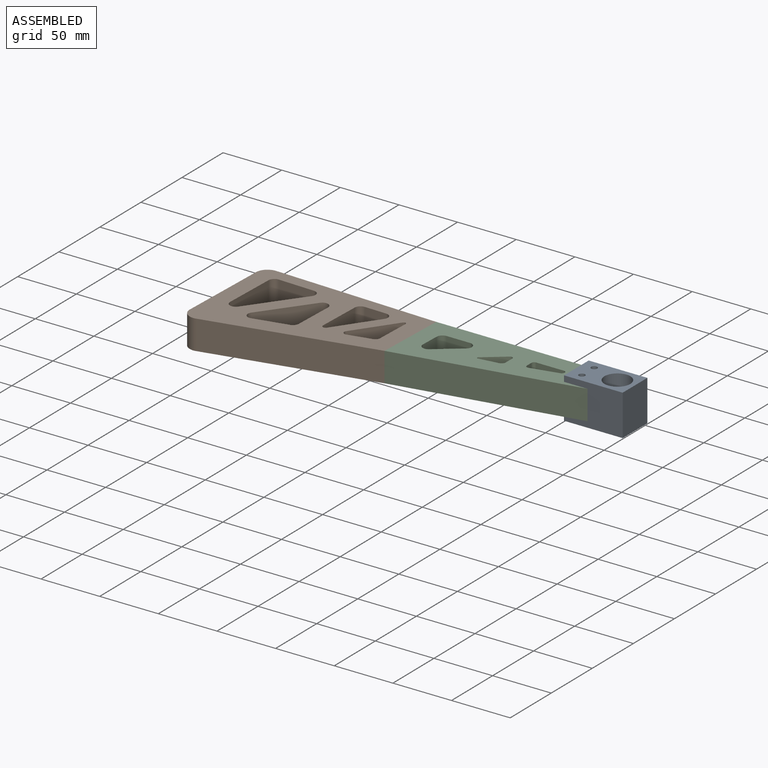
[diagram: assembled view]
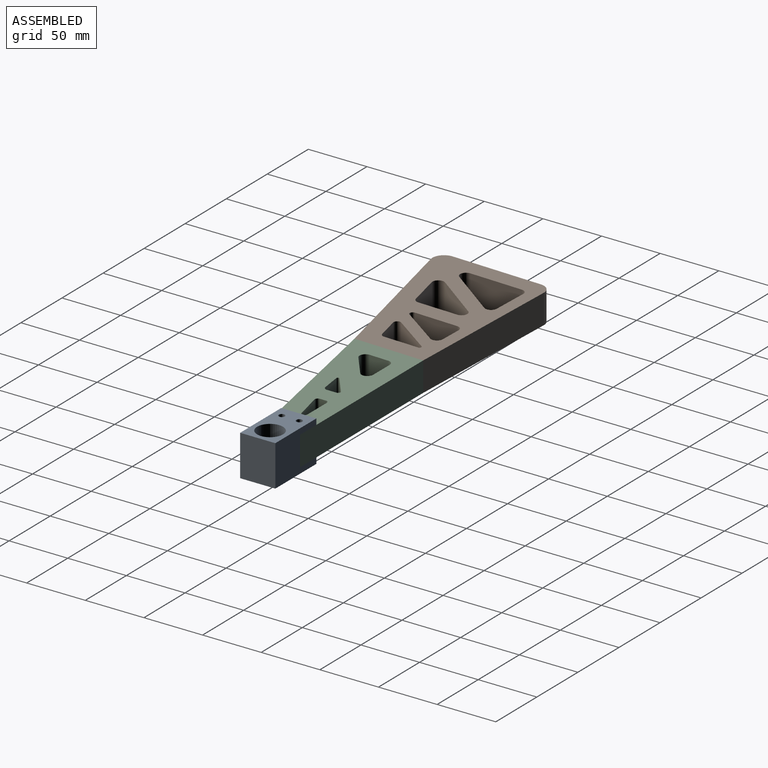
[diagram: assembled view, second angle]
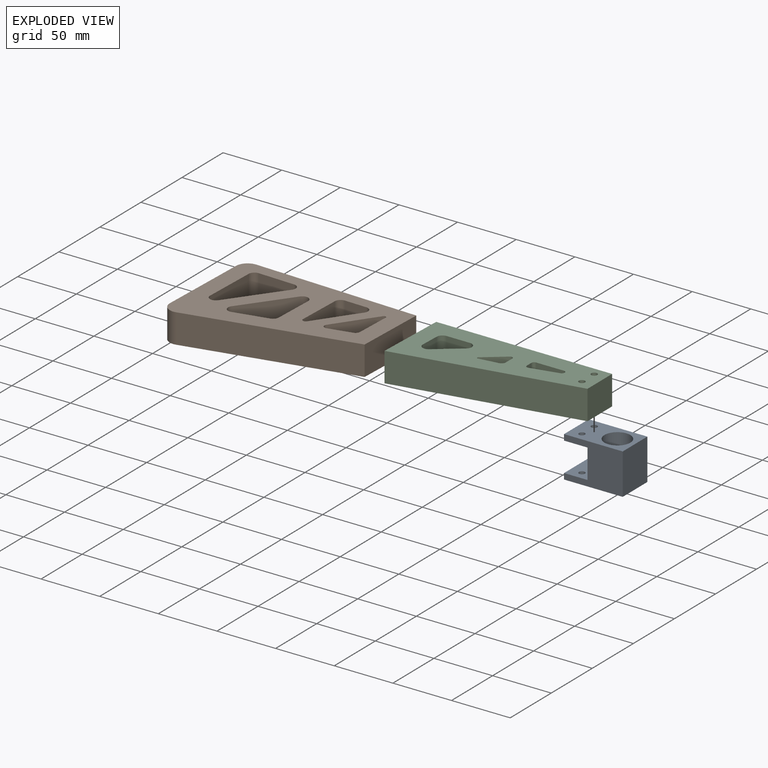
[diagram: exploded view]
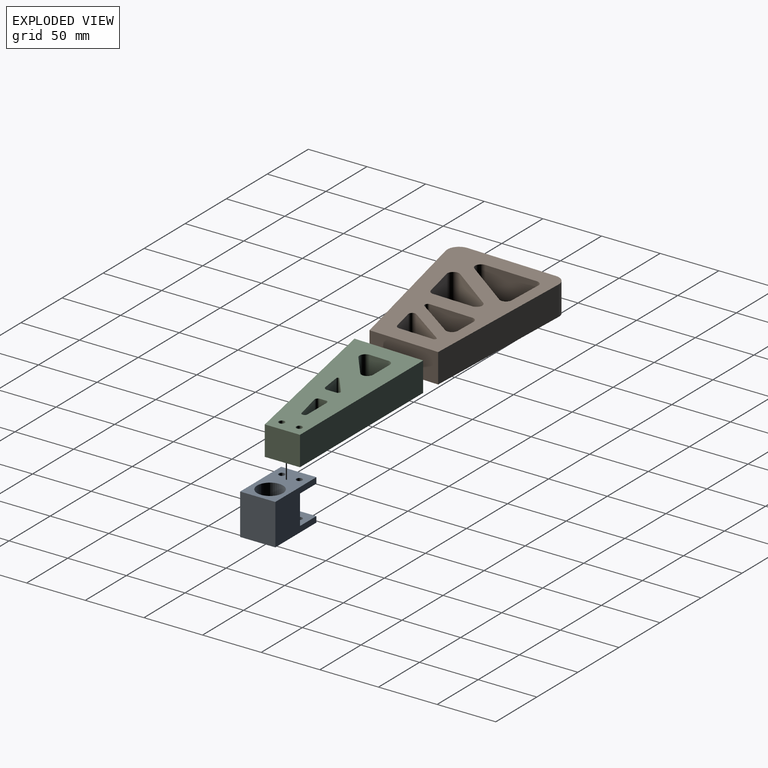
[diagram: exploded view, second angle]
ASSEMBLY  parts=3 mates=2
PART A: 15 faces, bbox 50x30x35 mm
  f0: plane 30x5mm, normal (-1,0,0), area 150mm2, adj f1,f2,f10,f13
  f1: plane 50x35mm, normal (0,1,0), area 1250mm2, adj f0,f5,f8,f10,f11,f12,f13,f14
  f2: plane 50x35mm, normal (0,-1,0), area 1250mm2, adj f0,f5,f8,f10,f11,f12,f13,f14
  f3: cylinder r=2.55mm len=5.1mm, axis (0,0,-1), area 80.1mm2, adj f10,f13
  f4: cylinder r=2.55mm len=5.1mm, axis (0,0,-1), area 80.1mm2, adj f10,f13
  f5: plane 30x5mm, normal (-1,0,0), area 150mm2, adj f1,f2,f11,f12
  f6: cylinder r=2.55mm len=5.1mm, axis (0,0,-1), area 80.1mm2, adj f11,f12
  f7: cylinder r=2.55mm len=5.1mm, axis (0,0,-1), area 80.1mm2, adj f11,f12
  f8: plane 35x30mm, normal (1,0,0), area 1050mm2, adj f1,f2,f10,f11
  f9: cylinder r=11.05mm len=35mm, axis (0,0,-1), area 2430mm2, adj f10,f11
  f10: plane 50x30mm, normal (0,0,1), area 1075.5mm2, adj f0,f1,f2,f3,f4,f8,f9
  f11: plane 50x30mm, normal (0,0,-1), area 1075.5mm2, adj f1,f2,f5,f6,f7,f8,f9
  f12: plane 30x20mm, normal (0,0,1), area 559.1mm2, adj f1,f2,f5,f6,f7,f14
  f13: plane 30x20mm, normal (0,0,-1), area 559.1mm2, adj f0,f1,f2,f3,f4,f14
  f14: plane 30x25mm, normal (-1,0,0), area 750mm2, adj f1,f2,f12,f13
PART B: 32 faces, bbox 150x97x25 mm
  f0: cylinder r=5mm len=25mm, axis (0,0,-1), area 303.9mm2, adj f1,f29,f30,f31
  f1: plane 41.68x28.47mm, normal (0.83,-0.56,0), area 1261.9mm2, adj f0,f2,f30,f31
  f2: cylinder r=5mm len=25mm, axis (0,0,-1), area 317.8mm2, adj f1,f3,f30,f31
  f3: plane 34.07x25mm, normal (-1,0,0), area 851.8mm2, adj f2,f4,f30,f31
  f4: cylinder r=5mm len=25mm, axis (0,0,-1), area 163.7mm2, adj f3,f29,f30,f31
  f5: cylinder r=3mm len=25mm, axis (0,0,-1), area 180.8mm2, adj f6,f25,f30,f31
  f6: plane 35.16x25mm, normal (0.84,-0.55,0), area 1049.9mm2, adj f5,f7,f30,f31
  f7: cylinder r=1.6mm len=25mm, axis (0,0,-1), area 102.4mm2, adj f6,f8,f30,f31
  f8: plane 29.71x25mm, normal (-1,0,0), area 742.8mm2, adj f7,f9,f30,f31
  f9: cylinder r=4mm len=25mm, axis (0,0,-1), area 131mm2, adj f8,f25,f30,f31
  f10: plane 139.98x25mm, normal (0,1,0), area 3499.4mm2, adj f11,f26,f30,f31
  f11: cylinder r=10mm len=25mm, axis (0,0,-1), area 393.3mm2, adj f10,f12,f30,f31
  f12: plane 76.99x25mm, normal (-1,0,0), area 1924.7mm2, adj f11,f13,f30,f31
  f13: cylinder r=10mm len=25mm, axis (0,0,-1), area 457.3mm2, adj f12,f14,f30,f31
  f14: plane 137.2x36.65mm, normal (0.26,-0.97,0), area 3550.3mm2, adj f13,f26,f30,f31
  f15: plane 25x18.63mm, normal (0.01,-1,0), area 465.8mm2, adj f16,f27,f30,f31
  f16: cylinder r=5mm len=25mm, axis (0,0,-1), area 269.9mm2, adj f15,f17,f30,f31
  f17: plane 35.73x25mm, normal (-0.84,0.55,0), area 1066.9mm2, adj f16,f18,f30,f31
  f18: cylinder r=2.44mm len=25mm, axis (0,0,-1), area 156.2mm2, adj f17,f19,f30,f31
  f19: plane 36.95x25mm, normal (1,0,0), area 923.7mm2, adj f18,f27,f30,f31
  f20: plane 30.81x25mm, normal (0,-1,0), area 770.3mm2, adj f21,f28,f30,f31
  f21: cylinder r=5mm len=25mm, axis (0,0,-1), area 271.3mm2, adj f20,f22,f30,f31
  f22: plane 44.93x30.7mm, normal (-0.83,0.56,0), area 1360.5mm2, adj f21,f23,f30,f31
  f23: cylinder r=5mm len=25mm, axis (0,0,-1), area 317.5mm2, adj f22,f24,f30,f31
  f24: plane 44.93x25mm, normal (1,0,0), area 1123.3mm2, adj f23,f28,f30,f31
  f25: plane 25x19.65mm, normal (-0.26,0.97,0), area 508.4mm2, adj f5,f9,f30,f31
  f26: plane 60x25mm, normal (1,0,0), area 1500mm2, adj f10,f14,f30,f31
  f27: cylinder r=5mm len=25mm, axis (0,0,-1), area 195.1mm2, adj f15,f19,f30,f31
  f28: cylinder r=5mm len=25mm, axis (0,0,-1), area 196.7mm2, adj f20,f24,f30,f31
  f29: plane 28.47x25mm, normal (-0.26,0.97,0), area 736.8mm2, adj f0,f4,f30,f31
  f30: plane 149.98x96.99mm, normal (0,0,1), area 8033.8mm2, adj f0,f1,f2,f3,f4,f5,f6,f7
  f31: plane 149.98x96.99mm, normal (0,0,-1), area 8033.8mm2, adj f0,f1,f2,f3,f4,f5,f6,f7
PART C: 26 faces, bbox 152.1x60x25 mm
  f0: cylinder r=1.12mm len=25mm, axis (0,0,-1), area 73.5mm2, adj f1,f21,f22,f23
  f1: plane 25x17.23mm, normal (0.61,-0.79,0), area 546mm2, adj f0,f2,f22,f23
  f2: cylinder r=2.02mm len=25mm, axis (0,0,-1), area 112.5mm2, adj f1,f3,f22,f23
  f3: plane 25x8.05mm, normal (-1,0,0), area 201.3mm2, adj f2,f4,f22,f23
  f4: cylinder r=3.53mm len=25mm, axis (0,0,-1), area 126.7mm2, adj f3,f21,f22,f23
  f5: plane 152.08x29.96mm, normal (0.19,-0.98,0), area 3875mm2, adj f6,f18,f22,f23
  f6: plane 30x25mm, normal (1,0,0), area 750mm2, adj f5,f7,f22,f23
  f7: plane 150x25mm, normal (0,1,0), area 3750mm2, adj f6,f18,f22,f23
  f8: plane 25x20.01mm, normal (0,-1,0), area 500.3mm2, adj f9,f19,f22,f23
  f9: cylinder r=5mm len=25mm, axis (0,0,-1), area 310mm2, adj f8,f10,f22,f23
  f10: plane 25x20.57mm, normal (-0.61,0.79,0), area 651.7mm2, adj f9,f11,f22,f23
  f11: cylinder r=5mm len=25mm, axis (0,0,-1), area 283.4mm2, adj f10,f12,f22,f23
  f12: plane 25x16.02mm, normal (1,-0.03,0), area 400.7mm2, adj f11,f19,f22,f23
  f13: cylinder r=2.42mm len=25mm, axis (0,0,-1), area 176.3mm2, adj f14,f20,f22,f23
  f14: plane 25x23.51mm, normal (-0.22,0.97,0), area 603.2mm2, adj f13,f15,f22,f23
  f15: cylinder r=2.42mm len=25mm, axis (0,0,-1), area 108.7mm2, adj f14,f16,f22,f23
  f16: plane 25x5.42mm, normal (1,0,0), area 135.6mm2, adj f15,f17,f22,f23
  f17: cylinder r=2.42mm len=25mm, axis (0,0,-1), area 95mm2, adj f16,f20,f22,f23
  f18: plane 59.96x25mm, normal (-1,0.03,0), area 1500mm2, adj f5,f7,f22,f23
  f19: cylinder r=5mm len=25mm, axis (0,0,-1), area 192mm2, adj f8,f12,f22,f23
  f20: plane 25x23.51mm, normal (0,-1,0), area 587.8mm2, adj f13,f17,f22,f23
  f21: plane 25x16.59mm, normal (-0.14,0.99,0), area 418.6mm2, adj f0,f4,f22,f23
  f22: plane 152.08x59.96mm, normal (0,0,1), area 5805mm2, adj f0,f1,f2,f3,f4,f5,f6,f7
  f23: plane 152.08x59.96mm, normal (0,0,-1), area 5805mm2, adj f0,f1,f2,f3,f4,f5,f6,f7
  f24: cylinder r=2.55mm len=25mm, axis (0,0,1), area 400.6mm2, adj f22,f23
  f25: cylinder r=2.55mm len=25mm, axis (0,0,1), area 400.6mm2, adj f22,f23
PLACE A t=(95.98,-23.99,-5)mm
PLACE B rot(axis=(0,0,-1),2deg) t=(-151.35,-27.72,0)mm
PLACE C at identity
MATE fastened B.f26 <-> C.f18  axis (1,-0.03,0) through (-69.65,-14.98,12.5)mm
MATE fastened A.f4 <-> C.f25  axis (0,0,-1) through (71.39,7.5,25)mm
